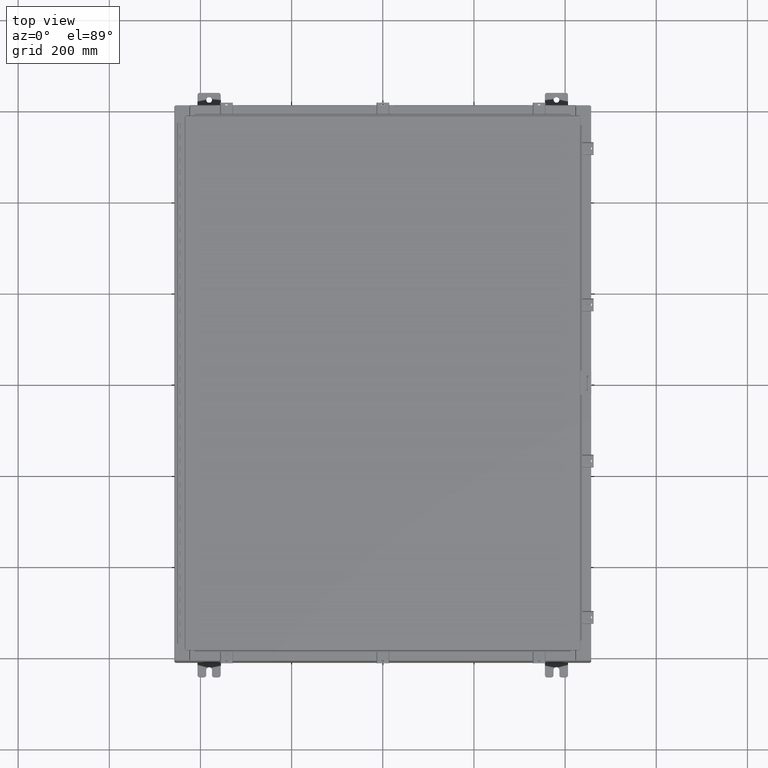
[diagram: clean part render]
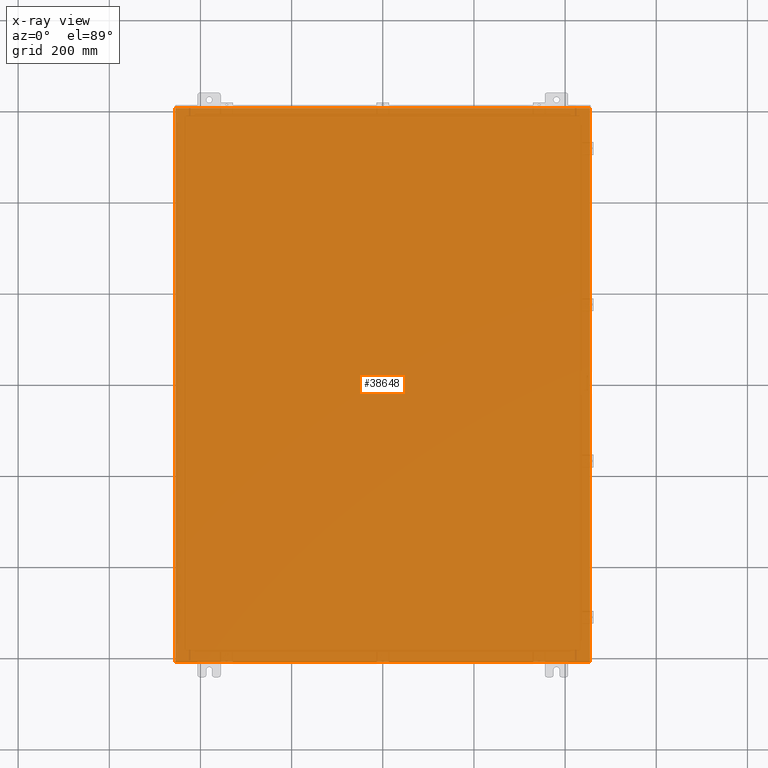
[diagram: x-ray — body ghosted, one internal face saturated and labeled with its STEP entity id]
A machine part, top view, then the same camera in x-ray: the body is ghosted and one INTERNAL B-rep face — a face not visible from any outside direction — is saturated and labeled: STEP entity #38648.
In plain terms, the highlighted planar face has unit normal (0, 0, -1).
Its self-contained STEP definition (entity closure, byte-faithful):
#1292 = VECTOR ( 'NONE', #51652, 39.37007874015748100 ) ;
#1362 = VECTOR ( 'NONE', #15627, 39.37007874015748100 ) ;
#1820 = DIRECTION ( 'NONE',  ( -0.0000000000000000000, 1.000000000000000000, -0.0000000000000000000 ) ) ;
#4202 = VECTOR ( 'NONE', #39921, 39.37007874015748100 ) ;
#6317 = LINE ( 'NONE', #30913, #27176 ) ;
#6592 = CARTESIAN_POINT ( 'NONE',  ( 17.91229999999999500, -23.92529999999998900, -8.238229105893793900E-016 ) ) ;
#7675 = VERTEX_POINT ( 'NONE', #6592 ) ;
#9445 = ORIENTED_EDGE ( 'NONE', *, *, #50149, .F. ) ;
#9796 = CARTESIAN_POINT ( 'NONE',  ( 17.91229999999999500, 23.92529999999998600, 3.103208580302999200E-015 ) ) ;
#10269 = CARTESIAN_POINT ( 'NONE',  ( 0.0000000000000000000, 0.0000000000000000000, 0.0000000000000000000 ) ) ;
#10456 = DIRECTION ( 'NONE',  ( 0.0000000000000000000, 0.0000000000000000000, -1.000000000000000000 ) ) ;
#12287 = LINE ( 'NONE', #43323, #1292 ) ;
#14921 = CARTESIAN_POINT ( 'NONE',  ( 17.91229999999999500, 23.92529999999998900, 3.103208580302999200E-015 ) ) ;
#15168 = FACE_OUTER_BOUND ( 'NONE', #32149, .T. ) ;
#15265 = LINE ( 'NONE', #14921, #4202 ) ;
#15498 = VERTEX_POINT ( 'NONE', #30398 ) ;
#15627 = DIRECTION ( 'NONE',  ( 1.000000000000000000, 1.214154663850783700E-016, 0.0000000000000000000 ) ) ;
#15841 = AXIS2_PLACEMENT_3D ( 'NONE', #10269, #10456, #39673 ) ;
#18640 = EDGE_CURVE ( 'NONE', #43102, #22918, #12287, .T. ) ;
#19693 = ORIENTED_EDGE ( 'NONE', *, *, #41590, .F. ) ;
#22918 = VERTEX_POINT ( 'NONE', #30623 ) ;
#27176 = VECTOR ( 'NONE', #1820, 39.37007874015748100 ) ;
#28814 = EDGE_CURVE ( 'NONE', #15498, #7675, #43057, .T. ) ;
#30398 = CARTESIAN_POINT ( 'NONE',  ( -17.91230000000000500, -23.92529999999998600, 4.481938114605432000E-017 ) ) ;
#30623 = CARTESIAN_POINT ( 'NONE',  ( -17.91230000000000500, 23.92529999999998900, 4.481938114605432000E-017 ) ) ;
#30913 = CARTESIAN_POINT ( 'NONE',  ( -17.91230000000000500, -23.92529999999998900, 4.481938114605432000E-017 ) ) ;
#32149 = EDGE_LOOP ( 'NONE', ( #19693, #50668, #9445, #40198 ) ) ;
#38648 = ADVANCED_FACE ( 'NONE', ( #15168 ), #52042, .F. ) ;
#39673 = DIRECTION ( 'NONE',  ( -1.000000000000000000, 0.0000000000000000000, -0.0000000000000000000 ) ) ;
#39921 = DIRECTION ( 'NONE',  ( -0.0000000000000000000, -1.000000000000000000, -8.208677865577646300E-017 ) ) ;
#40198 = ORIENTED_EDGE ( 'NONE', *, *, #18640, .T. ) ;
#41590 = EDGE_CURVE ( 'NONE', #15498, #22918, #6317, .T. ) ;
#43057 = LINE ( 'NONE', #44809, #1362 ) ;
#43102 = VERTEX_POINT ( 'NONE', #9796 ) ;
#43323 = CARTESIAN_POINT ( 'NONE',  ( -18.00000000000000400, 23.92530000000000000, 0.0000000000000000000 ) ) ;
#44809 = CARTESIAN_POINT ( 'NONE',  ( -18.00000000000000400, -23.92530000000000400, 0.0000000000000000000 ) ) ;
#50149 = EDGE_CURVE ( 'NONE', #43102, #7675, #15265, .T. ) ;
#50668 = ORIENTED_EDGE ( 'NONE', *, *, #28814, .T. ) ;
#51652 = DIRECTION ( 'NONE',  ( -1.000000000000000000, -0.0000000000000000000, -0.0000000000000000000 ) ) ;
#52042 = PLANE ( 'NONE',  #15841 ) ;